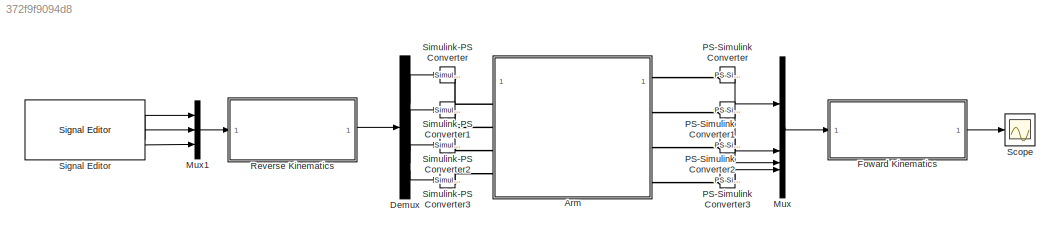
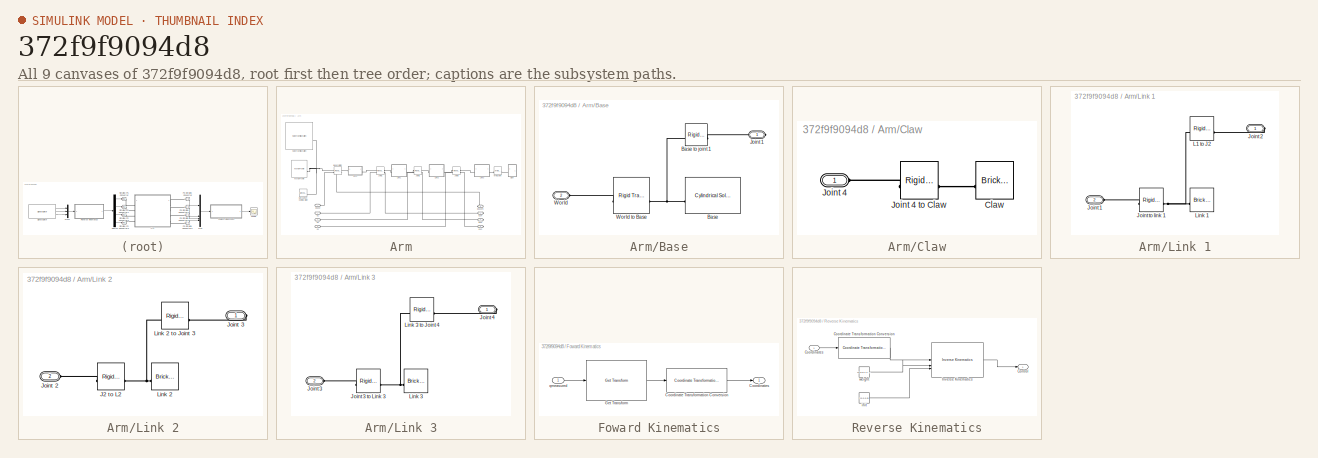
[diagram: thumbnail index - all 9 canvases of the model, root first then tree order]
MODEL slx_372f9f9094d8
KIND model
CONFIG AbsTol = auto
CONFIG EnableMultiTasking = off
CONFIG FixedStep = auto
CONFIG MaxStep = auto
CONFIG MinStep = auto
CONFIG RelTol = 1e-3
CONFIG SampleTimeConstraint = Unconstrained
CONFIG SolverName = VariableStepAuto
CONFIG StartTime = 0.0
CONFIG StopTime = 10.0
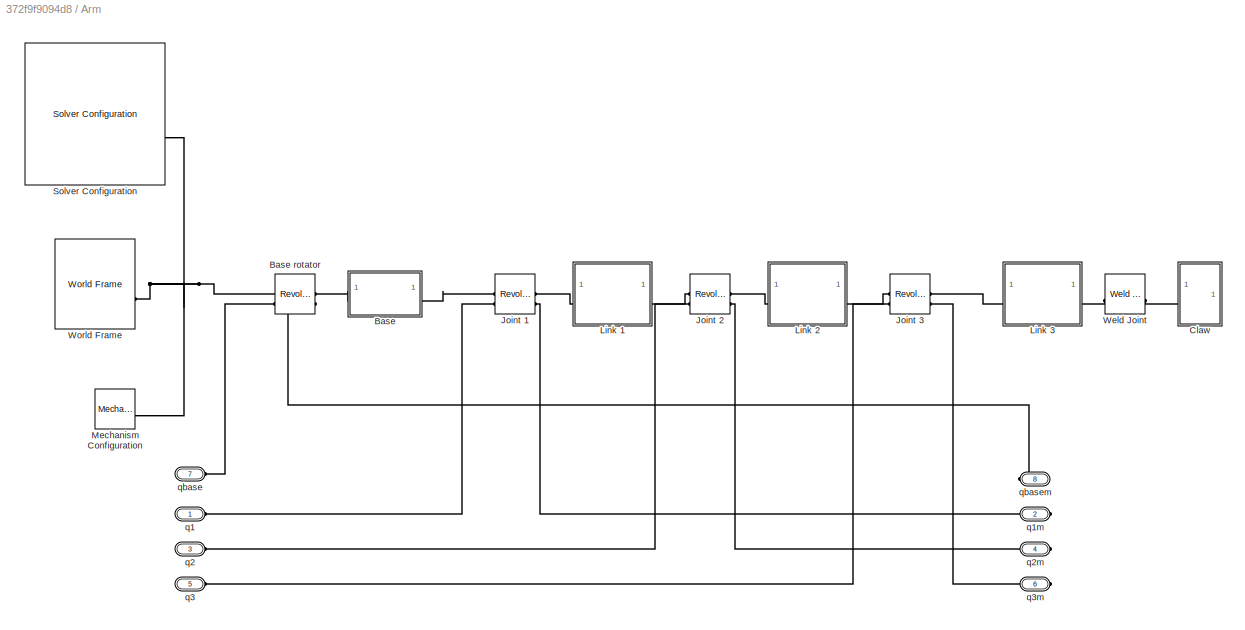
BLOCK [SubSystem] Arm
BLOCK [SubSystem] Arm/Base
BLOCK [Reference] Arm/Base rotator  REF=sm_lib/Joints/Revolute Joint
  SourceBlock = sm_lib/Joints/Revolute Joint
  SourceType = Revolute Joint
BLOCK [Reference] Arm/Base/Base  REF=sm_lib/Body Elements/Cylindrical Solid
  SourceBlock = sm_lib/Body Elements/Cylindrical Solid
  SourceType = Cylindrical Solid
BLOCK [Reference] Arm/Base/Base to joint 1  REF=sm_lib/Frames and
Transforms/Rigid
Transform
  SourceBlock = sm_lib/Frames and\nTransforms/Rigid\nTransform
  SourceType = Rigid\nTransform
BLOCK [PMIOPort] Arm/Base/Joint 1
  Side = Right
BLOCK [PMIOPort] Arm/Base/World
  Port = 2
  Side = Left
BLOCK [Reference] Arm/Base/World to Base  REF=sm_lib/Frames and
Transforms/Rigid
Transform
  SourceBlock = sm_lib/Frames and\nTransforms/Rigid\nTransform
  SourceType = Rigid\nTransform
BLOCK [SubSystem] Arm/Claw
BLOCK [Reference] Arm/Claw/Claw  REF=sm_lib/Body Elements/Brick Solid
  SourceBlock = sm_lib/Body Elements/Brick Solid
  SourceType = Brick Solid
BLOCK [PMIOPort] Arm/Claw/Joint 4
  Side = Left
BLOCK [Reference] Arm/Claw/Joint 4 to Claw  REF=sm_lib/Frames and
Transforms/Rigid
Transform
  SourceBlock = sm_lib/Frames and\nTransforms/Rigid\nTransform
  SourceType = Rigid\nTransform
BLOCK [Reference] Arm/Joint 1  REF=sm_lib/Joints/Revolute Joint
  SourceBlock = sm_lib/Joints/Revolute Joint
  SourceType = Revolute Joint
BLOCK [Reference] Arm/Joint 2  REF=sm_lib/Joints/Revolute Joint
  SourceBlock = sm_lib/Joints/Revolute Joint
  SourceType = Revolute Joint
BLOCK [Reference] Arm/Joint 3  REF=sm_lib/Joints/Revolute Joint
  SourceBlock = sm_lib/Joints/Revolute Joint
  SourceType = Revolute Joint
BLOCK [SubSystem] Arm/Link 1
BLOCK [PMIOPort] Arm/Link 1/Joint 1
  Port = 2
  Side = Left
BLOCK [PMIOPort] Arm/Link 1/Joint 2
  Side = Right
BLOCK [Reference] Arm/Link 1/Joint to link 1  REF=sm_lib/Frames and
Transforms/Rigid
Transform
  SourceBlock = sm_lib/Frames and\nTransforms/Rigid\nTransform
  SourceType = Rigid\nTransform
BLOCK [Reference] Arm/Link 1/L1 to J2  REF=sm_lib/Frames and
Transforms/Rigid
Transform
  SourceBlock = sm_lib/Frames and\nTransforms/Rigid\nTransform
  SourceType = Rigid\nTransform
BLOCK [Reference] Arm/Link 1/Link 1   REF=sm_lib/Body Elements/Brick Solid
  SourceBlock = sm_lib/Body Elements/Brick Solid
  SourceType = Brick Solid
BLOCK [SubSystem] Arm/Link 2
BLOCK [Reference] Arm/Link 2/J2 to L2  REF=sm_lib/Frames and
Transforms/Rigid
Transform
  SourceBlock = sm_lib/Frames and\nTransforms/Rigid\nTransform
  SourceType = Rigid\nTransform
BLOCK [PMIOPort] Arm/Link 2/Joint 2
  Port = 2
  Side = Left
BLOCK [PMIOPort] Arm/Link 2/Joint 3
  Side = Right
BLOCK [Reference] Arm/Link 2/Link 2  REF=sm_lib/Body Elements/Brick Solid
  SourceBlock = sm_lib/Body Elements/Brick Solid
  SourceType = Brick Solid
BLOCK [Reference] Arm/Link 2/Link 2 to Joint 3  REF=sm_lib/Frames and
Transforms/Rigid
Transform
  SourceBlock = sm_lib/Frames and\nTransforms/Rigid\nTransform
  SourceType = Rigid\nTransform
BLOCK [SubSystem] Arm/Link 3
BLOCK [PMIOPort] Arm/Link 3/Joint 3
  Port = 2
  Side = Left
BLOCK [Reference] Arm/Link 3/Joint 3 to Link 3  REF=sm_lib/Frames and
Transforms/Rigid
Transform
  SourceBlock = sm_lib/Frames and\nTransforms/Rigid\nTransform
  SourceType = Rigid\nTransform
BLOCK [PMIOPort] Arm/Link 3/Joint 4
  Side = Right
BLOCK [Reference] Arm/Link 3/Link 3  REF=sm_lib/Body Elements/Brick Solid
  SourceBlock = sm_lib/Body Elements/Brick Solid
  SourceType = Brick Solid
BLOCK [Reference] Arm/Link 3/Link 3 to Joint 4  REF=sm_lib/Frames and
Transforms/Rigid
Transform
  SourceBlock = sm_lib/Frames and\nTransforms/Rigid\nTransform
  SourceType = Rigid\nTransform
BLOCK [Reference] Arm/Mechanism Configuration  REF=sm_lib/Utilities/Mechanism
Configuration
  SourceBlock = sm_lib/Utilities/Mechanism\nConfiguration
  SourceType = Mechanism\nConfiguration
BLOCK [Reference] Arm/Solver Configuration  REF=nesl_utility/Solver
Configuration
  SourceBlock = nesl_utility/Solver\nConfiguration
  SourceType = Solver\nConfiguration
BLOCK [Reference] Arm/Weld Joint  REF=sm_lib/Joints/Weld Joint
  SourceBlock = sm_lib/Joints/Weld Joint
  SourceType = Weld Joint
BLOCK [Reference] Arm/World Frame  REF=sm_lib/Frames and
Transforms/World Frame
  SourceBlock = sm_lib/Frames and\nTransforms/World Frame
  SourceType = World Frame
BLOCK [PMIOPort] Arm/q1
  Side = Left
BLOCK [PMIOPort] Arm/q1m
  Port = 2
  Side = Right
BLOCK [PMIOPort] Arm/q2
  Port = 3
  Side = Left
BLOCK [PMIOPort] Arm/q2m
  Port = 4
  Side = Right
BLOCK [PMIOPort] Arm/q3
  Port = 5
  Side = Left
BLOCK [PMIOPort] Arm/q3m
  Port = 6
  Side = Right
BLOCK [PMIOPort] Arm/qbase
  Port = 7
  Side = Left
BLOCK [PMIOPort] Arm/qbasem
  Port = 8
  Side = Right
BLOCK [Demux] Demux
BLOCK [SubSystem] Foward Kinematics
BLOCK [Reference] Foward Kinematics/Coordinate Transformation Conversion  REF=robotcorelib/Coordinate Transformation Conversion
  LibrarySourceBlock = robotutilslib/Coordinate Transformation Conversion
  SourceBlock = robotcorelib/Coordinate Transformation Conversion
  SourceType = robotics.slcore.internal.block.CoordinateTransformationConversion
BLOCK [Outport] Foward Kinematics/Coordinates
BLOCK [Reference] Foward Kinematics/Get Transform  REF=robotmaniplib/Get Transform
  SourceBlock = robotmaniplib/Get Transform
  SourceType = Get Transform
BLOCK [Inport] Foward Kinematics/qmeasured
BLOCK [Mux] Mux
  DisplayOption = bar
BLOCK [Mux] Mux1
  DisplayOption = bar
  Inputs = 3
BLOCK [Reference] PS-Simulink Converter  REF=nesl_utility/PS-Simulink
Converter
  SourceBlock = nesl_utility/PS-Simulink\nConverter
  SourceType = PS-Simulink\nConverter
BLOCK [Reference] PS-Simulink Converter1  REF=nesl_utility/PS-Simulink
Converter
  SourceBlock = nesl_utility/PS-Simulink\nConverter
  SourceType = PS-Simulink\nConverter
BLOCK [Reference] PS-Simulink Converter2  REF=nesl_utility/PS-Simulink
Converter
  SourceBlock = nesl_utility/PS-Simulink\nConverter
  SourceType = PS-Simulink\nConverter
BLOCK [Reference] PS-Simulink Converter3  REF=nesl_utility/PS-Simulink
Converter
  SourceBlock = nesl_utility/PS-Simulink\nConverter
  SourceType = PS-Simulink\nConverter
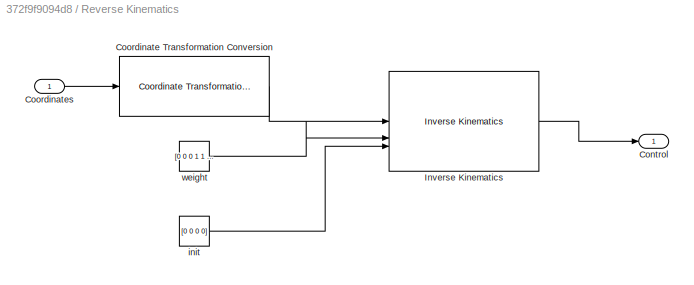
BLOCK [SubSystem] Reverse Kinematics
BLOCK [Outport] Reverse Kinematics/Control
BLOCK [Reference] Reverse Kinematics/Coordinate Transformation Conversion  REF=robotcorelib/Coordinate Transformation Conversion
  LibrarySourceBlock = robotutilslib/Coordinate Transformation Conversion
  SourceBlock = robotcorelib/Coordinate Transformation Conversion
  SourceType = robotics.slcore.internal.block.CoordinateTransformationConversion
BLOCK [Inport] Reverse Kinematics/Coordinates
BLOCK [Reference] Reverse Kinematics/Inverse Kinematics  REF=robotmaniplib/Inverse Kinematics
  SourceBlock = robotmaniplib/Inverse Kinematics
  SourceType = Inverse Kinematics
BLOCK [Constant] Reverse Kinematics/init
  Value = [0 0 0 0]
BLOCK [Constant] Reverse Kinematics/weight
  Value = [0 0 0 1 1 1]
BLOCK [Scope] Scope
  Floating = off
  NumInputPorts = 1
  ScopeSpecificationString = Simulink.scopes.TimeScopeBlockCfg('CurrentConfiguration', extmgr.ConfigurationSet(extmgr.Configuration('Core','General UI',true),extmgr.Configuration('Core','Source UI',true),extmgr.Configuration('Sources','WiredSimulink',true),extmgr.Configuration('Visuals','Time Domain',true,'SerializedDisplays',{struct('MinYLimReal','-0.38973','MaxYLimReal','3.48775','YLabelReal','','MinYLimMag','0.00000','MaxY...<+1412ch>
BLOCK [Reference] Signal Editor  REF=SignalEditorBlockLib/Signal Editor
  LibrarySourceBlock = simulink/Sources/Signal Editor
  SourceBlock = SignalEditorBlockLib/Signal Editor
  SourceType = SignalEditor
  UserDataPersistent = on
BLOCK [Reference] Simulink-PS Converter  REF=nesl_utility/Simulink-PS
Converter
  SourceBlock = nesl_utility/Simulink-PS\nConverter
  SourceType = Simulink-PS\nConverter
BLOCK [Reference] Simulink-PS Converter1  REF=nesl_utility/Simulink-PS
Converter
  SourceBlock = nesl_utility/Simulink-PS\nConverter
  SourceType = Simulink-PS\nConverter
BLOCK [Reference] Simulink-PS Converter2  REF=nesl_utility/Simulink-PS
Converter
  SourceBlock = nesl_utility/Simulink-PS\nConverter
  SourceType = Simulink-PS\nConverter
BLOCK [Reference] Simulink-PS Converter3  REF=nesl_utility/Simulink-PS
Converter
  SourceBlock = nesl_utility/Simulink-PS\nConverter
  SourceType = Simulink-PS\nConverter
LINE Demux:1 -> Simulink-PS Converter:1
LINE Demux:2 -> Simulink-PS Converter1:1
LINE Demux:3 -> Simulink-PS Converter2:1
LINE Demux:4 -> Simulink-PS Converter3:1
LINE Foward Kinematics/Coordinate Transformation Conversion:1 -> Foward Kinematics/Coordinates:1
LINE Foward Kinematics/Get Transform:1 -> Foward Kinematics/Coordinate Transformation Conversion:1
LINE Foward Kinematics/qmeasured:1 -> Foward Kinematics/Get Transform:1
LINE Foward Kinematics:1 -> Scope:1
LINE Mux1:1 -> Reverse Kinematics:1
LINE Mux:1 -> Foward Kinematics:1
LINE PS-Simulink Converter1:1 -> Mux:2
LINE PS-Simulink Converter2:1 -> Mux:3
LINE PS-Simulink Converter3:1 -> Mux:4
LINE PS-Simulink Converter:1 -> Mux:1
LINE Reverse Kinematics/Coordinate Transformation Conversion:1 -> Reverse Kinematics/Inverse Kinematics:1
LINE Reverse Kinematics/Coordinates:1 -> Reverse Kinematics/Coordinate Transformation Conversion:1
LINE Reverse Kinematics/Inverse Kinematics:1 -> Reverse Kinematics/Control:1
LINE Reverse Kinematics/init:1 -> Reverse Kinematics/Inverse Kinematics:3
LINE Reverse Kinematics/weight:1 -> Reverse Kinematics/Inverse Kinematics:2
LINE Reverse Kinematics:1 -> Demux:1
LINE Signal Editor:1 -> Mux1:1
LINE Signal Editor:2 -> Mux1:2
LINE Signal Editor:3 -> Mux1:3
PNET net1: Arm/Base rotator:LConn1 -- Arm/Mechanism Configuration:RConn1 -- Arm/Solver Configuration:RConn1 -- Arm/World Frame:RConn1
PLINE Arm/Base rotator:LConn2 -- Arm/qbase:RConn1
PLINE Arm/Base rotator:RConn1 -- Arm/Base:LConn1
PLINE Arm/Base rotator:RConn2 -- Arm/qbasem:RConn1
PNET net2: Arm/Base/Base to joint 1:LConn1 -- Arm/Base/Base:RConn1 -- Arm/Base/World to Base:RConn1
PLINE Arm/Base/Base to joint 1:RConn1 -- Arm/Base/Joint 1:RConn1
PLINE Arm/Base/World to Base:LConn1 -- Arm/Base/World:RConn1
PLINE Arm/Base:RConn1 -- Arm/Joint 1:LConn1
PLINE Arm/Claw/Claw:RConn1 -- Arm/Claw/Joint 4 to Claw:RConn1
PLINE Arm/Claw/Joint 4 to Claw:LConn1 -- Arm/Claw/Joint 4:RConn1
PLINE Arm/Claw:LConn1 -- Arm/Weld Joint:RConn1
PLINE Arm/Joint 1:LConn2 -- Arm/q1:RConn1
PLINE Arm/Joint 1:RConn1 -- Arm/Link 1:LConn1
PLINE Arm/Joint 1:RConn2 -- Arm/q1m:RConn1
PLINE Arm/Joint 2:LConn1 -- Arm/Link 1:RConn1
PLINE Arm/Joint 2:LConn2 -- Arm/q2:RConn1
PLINE Arm/Joint 2:RConn1 -- Arm/Link 2:LConn1
PLINE Arm/Joint 2:RConn2 -- Arm/q2m:RConn1
PLINE Arm/Joint 3:LConn1 -- Arm/Link 2:RConn1
PLINE Arm/Joint 3:LConn2 -- Arm/q3:RConn1
PLINE Arm/Joint 3:RConn1 -- Arm/Link 3:LConn1
PLINE Arm/Joint 3:RConn2 -- Arm/q3m:RConn1
PLINE Arm/Link 1/Joint 1:RConn1 -- Arm/Link 1/Joint to link 1:LConn1
PLINE Arm/Link 1/Joint 2:RConn1 -- Arm/Link 1/L1 to J2:RConn1
PNET net3: Arm/Link 1/Joint to link 1:RConn1 -- Arm/Link 1/L1 to J2:LConn1 -- Arm/Link 1/Link 1 :RConn1
PLINE Arm/Link 2/J2 to L2:LConn1 -- Arm/Link 2/Joint 2:RConn1
PNET net4: Arm/Link 2/J2 to L2:RConn1 -- Arm/Link 2/Link 2 to Joint 3:LConn1 -- Arm/Link 2/Link 2:RConn1
PLINE Arm/Link 2/Joint 3:RConn1 -- Arm/Link 2/Link 2 to Joint 3:RConn1
PLINE Arm/Link 3/Joint 3 to Link 3:LConn1 -- Arm/Link 3/Joint 3:RConn1
PNET net5: Arm/Link 3/Joint 3 to Link 3:RConn1 -- Arm/Link 3/Link 3 to Joint 4:LConn1 -- Arm/Link 3/Link 3:RConn1
PLINE Arm/Link 3/Joint 4:RConn1 -- Arm/Link 3/Link 3 to Joint 4:RConn1
PLINE Arm/Link 3:RConn1 -- Arm/Weld Joint:LConn1
PLINE Arm:LConn1 -- Simulink-PS Converter:RConn1
PLINE Arm:LConn2 -- Simulink-PS Converter1:RConn1
PLINE Arm:LConn3 -- Simulink-PS Converter2:RConn1
PLINE Arm:LConn4 -- Simulink-PS Converter3:RConn1
PLINE Arm:RConn1 -- PS-Simulink Converter:LConn1
PLINE Arm:RConn2 -- PS-Simulink Converter1:LConn1
PLINE Arm:RConn3 -- PS-Simulink Converter2:LConn1
PLINE Arm:RConn4 -- PS-Simulink Converter3:LConn1
note: PNET lines group multi-terminal physical nets as a canonical sorted terminal list (undirected conserving connections); 2-terminal nets keep the pairwise PLINE form
